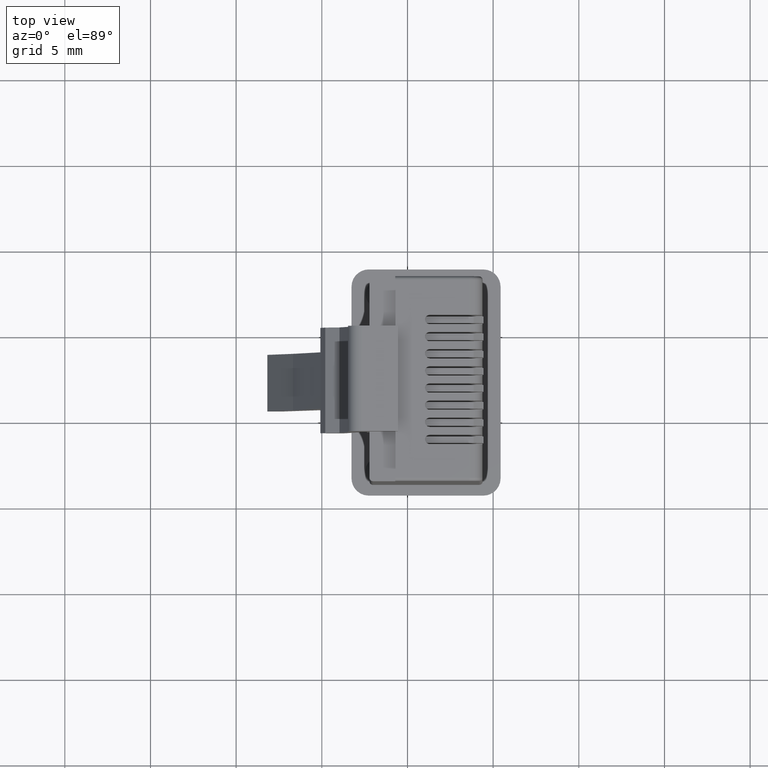
[diagram: clean part render]
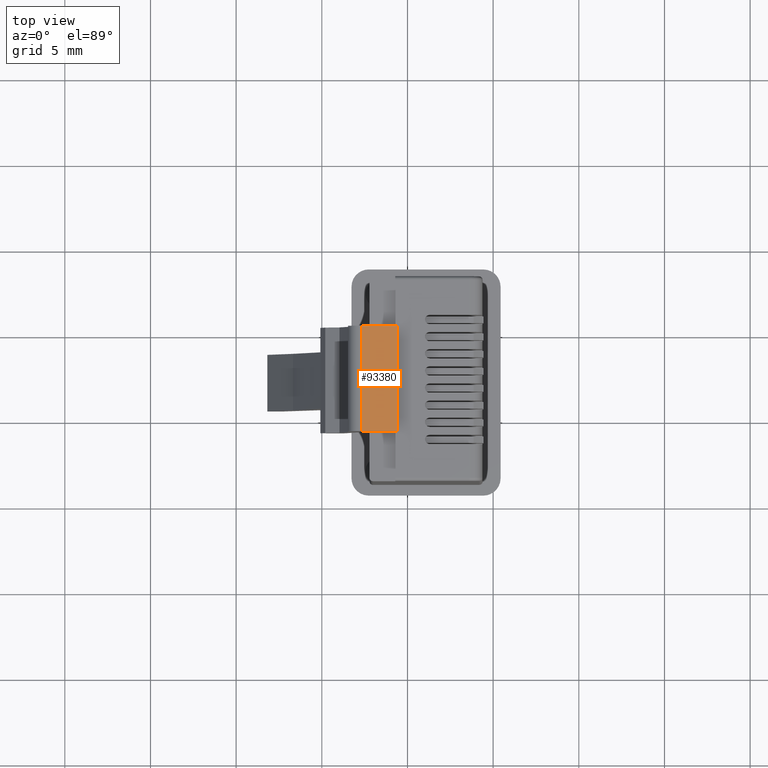
[diagram: same view with one face highlighted and labeled with its STEP entity id]
A machine part, top view. The second image highlights one B-rep face of the part: STEP entity #93380.
In plain terms, the highlighted planar face has unit normal (0, 0, 1).
Its self-contained STEP definition (entity closure, byte-faithful):
#92990=CARTESIAN_POINT('',(8.37814261363792,9.41886962969768,-14.25));
#93000=DIRECTION('',(-1.66533453693773E-16,-3.88578058618805E-16,-1.));
#93010=DIRECTION('',(1.,-3.08148791101958E-32,-1.66533453693773E-16));
#93020=AXIS2_PLACEMENT_3D('',#92990,#93000,#93010);
#93030=PLANE('',#93020);
#93040=CARTESIAN_POINT('',(8.37814261363792,6.26886962969768,-14.25));
#93050=DIRECTION('',(-1.,-1.06642836637918E-16,1.66533453693774E-16));
#93060=VECTOR('',#93050,1000.);
#93070=LINE('',#93040,#93060);
#93080=CARTESIAN_POINT('',(14.5031426136379,6.26886962969768,-14.25));
#93090=VERTEX_POINT('',#93080);
#93100=CARTESIAN_POINT('',(8.35314261363792,6.26886962969768,-14.25));
#93110=VERTEX_POINT('',#93100);
#93120=EDGE_CURVE('',#93090,#93110,#93070,.T.);
#93130=ORIENTED_EDGE('',*,*,#93120,.T.);
#93140=CARTESIAN_POINT('',(14.5031426136379,7.91886962969768,-14.25));
#93150=DIRECTION('',(1.37676466347366E-16,1.,-3.88578058618805E-16));
#93160=VECTOR('',#93150,1.);
#93170=LINE('',#93140,#93160);
#93180=CARTESIAN_POINT('',(14.5031426136379,8.36886962969768,-14.25));
#93190=VERTEX_POINT('',#93180);
#93200=EDGE_CURVE('',#93090,#93190,#93170,.T.);
#93210=ORIENTED_EDGE('',*,*,#93200,.F.);
#93220=CARTESIAN_POINT('',(11.4281426136379,8.36886962969768,-14.25));
#93230=DIRECTION('',(1.,-3.08148791101958E-32,-1.66533453693773E-16));
#93240=VECTOR('',#93230,1.);
#93250=LINE('',#93220,#93240);
#93260=CARTESIAN_POINT('',(8.35314261363792,8.36886962969768,-14.25));
#93270=VERTEX_POINT('',#93260);
#93280=EDGE_CURVE('',#93270,#93190,#93250,.T.);
#93290=ORIENTED_EDGE('',*,*,#93280,.T.);
#93300=CARTESIAN_POINT('',(8.35314261363792,7.91886962969768,-14.25));
#93310=DIRECTION('',(-1.37676466347366E-16,1.,-3.88578058618805E-16));
#93320=VECTOR('',#93310,1.);
#93330=LINE('',#93300,#93320);
#93340=EDGE_CURVE('',#93110,#93270,#93330,.T.);
#93350=ORIENTED_EDGE('',*,*,#93340,.T.);
#93360=EDGE_LOOP('',(#93350,#93290,#93210,#93130));
#93370=FACE_OUTER_BOUND('',#93360,.T.);
#93380=ADVANCED_FACE('',(#93370),#93030,.T.);